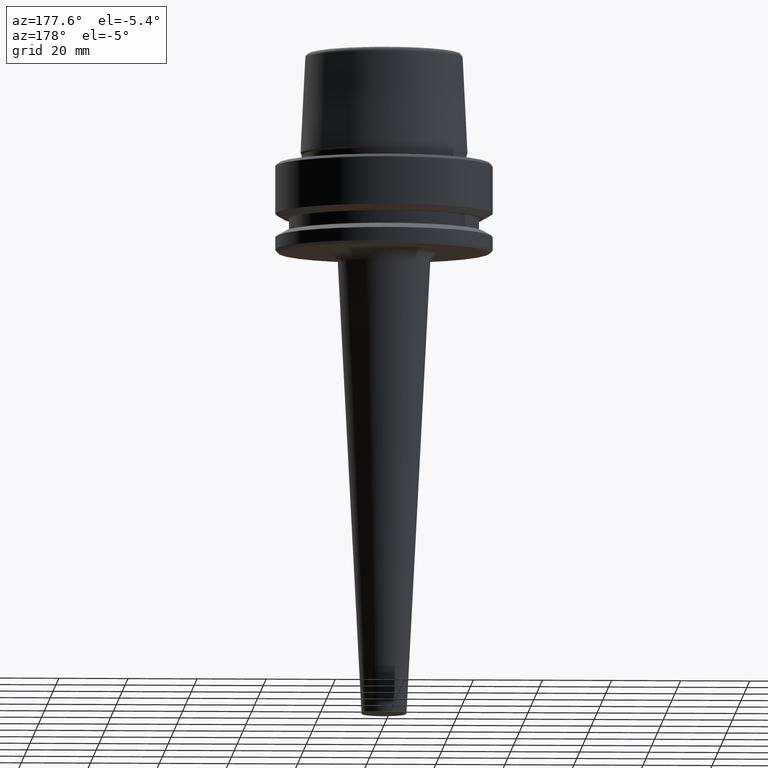
[diagram: clean part render]
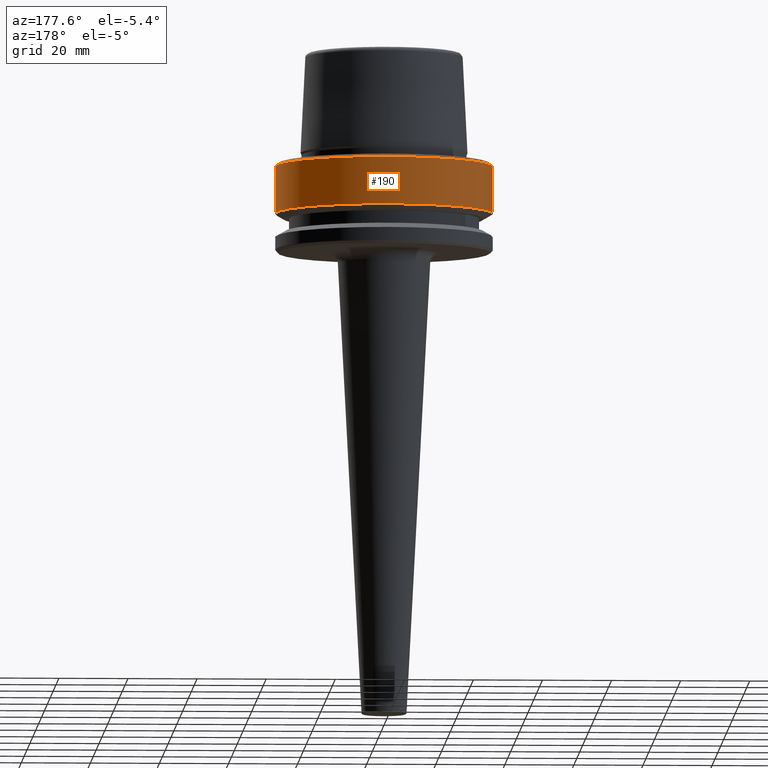
[diagram: same view with one face highlighted and labeled with its STEP entity id]
A machine part, auxiliary view. The second image highlights one B-rep face of the part: STEP entity #190.
In plain terms, the highlighted cylindrical surface (partial cylindrical patch) has radius 31.5 mm, axis along (-0, -0, 1).
Its self-contained STEP definition (entity closure, byte-faithful):
#7 = DIRECTION ( 'NONE',  ( -0.0000000000000000000, -0.0000000000000000000, 1.000000000000000000 ) ) ;
#36 = DIRECTION ( 'NONE',  ( 1.000000000000000000, 0.0000000000000000000, 0.0000000000000000000 ) ) ;
#72 = VECTOR ( 'NONE', #449, 1000.000000000000000 ) ;
#77 = DIRECTION ( 'NONE',  ( -0.0000000000000000000, -0.0000000000000000000, 1.000000000000000000 ) ) ;
#153 = CARTESIAN_POINT ( 'NONE',  ( 0.0000000000000000000, 0.0000000000000000000, 78.96908074195309300 ) ) ;
#164 = DIRECTION ( 'NONE',  ( 1.000000000000000000, 0.0000000000000000000, 0.0000000000000000000 ) ) ;
#171 = CIRCLE ( 'NONE', #596, 31.50000000000000000 ) ;
#190 = ADVANCED_FACE ( 'NONE', ( #1190 ), #977, .T. ) ;
#224 = DIRECTION ( 'NONE',  ( -0.0000000000000000000, -0.0000000000000000000, 1.000000000000000000 ) ) ;
#362 = ORIENTED_EDGE ( 'NONE', *, *, #729, .T. ) ;
#390 = VERTEX_POINT ( 'NONE', #409 ) ;
#409 = CARTESIAN_POINT ( 'NONE',  ( -31.50000000000000000, 3.857637417314162700E-015, -14.62250092524070100 ) ) ;
#415 = DIRECTION ( 'NONE',  ( 1.000000000000000000, 0.0000000000000000000, 0.0000000000000000000 ) ) ;
#449 = DIRECTION ( 'NONE',  ( -0.0000000000000000000, -0.0000000000000000000, 1.000000000000000000 ) ) ;
#463 = VERTEX_POINT ( 'NONE', #892 ) ;
#466 = LINE ( 'NONE', #807, #72 ) ;
#470 = CARTESIAN_POINT ( 'NONE',  ( 31.50000000000000000, 0.0000000000000000000, -14.62250092524070100 ) ) ;
#474 = EDGE_LOOP ( 'NONE', ( #362, #666, #834, #745 ) ) ;
#502 = VERTEX_POINT ( 'NONE', #574 ) ;
#512 = VERTEX_POINT ( 'NONE', #470 ) ;
#526 = DIRECTION ( 'NONE',  ( -0.0000000000000000000, -0.0000000000000000000, 1.000000000000000000 ) ) ;
#574 = CARTESIAN_POINT ( 'NONE',  ( -31.50000000000000700, 3.857637417314163500E-015, -0.9656854249492363700 ) ) ;
#593 = CARTESIAN_POINT ( 'NONE',  ( -31.50000000000000000, 3.857637417314162700E-015, 78.96908074195309300 ) ) ;
#596 = AXIS2_PLACEMENT_3D ( 'NONE', #759, #77, #164 ) ;
#632 = EDGE_CURVE ( 'NONE', #512, #463, #466, .T. ) ;
#666 = ORIENTED_EDGE ( 'NONE', *, *, #681, .T. ) ;
#681 = EDGE_CURVE ( 'NONE', #390, #502, #1163, .T. ) ;
#728 = CARTESIAN_POINT ( 'NONE',  ( 0.0000000000000000000, 0.0000000000000000000, -0.9656854249492363700 ) ) ;
#729 = EDGE_CURVE ( 'NONE', #512, #390, #171, .T. ) ;
#736 = CIRCLE ( 'NONE', #785, 31.50000000000000700 ) ;
#745 = ORIENTED_EDGE ( 'NONE', *, *, #632, .F. ) ;
#759 = CARTESIAN_POINT ( 'NONE',  ( 0.0000000000000000000, 0.0000000000000000000, -14.62250092524070100 ) ) ;
#785 = AXIS2_PLACEMENT_3D ( 'NONE', #728, #7, #36 ) ;
#807 = CARTESIAN_POINT ( 'NONE',  ( 31.50000000000000000, 0.0000000000000000000, 78.96908074195309300 ) ) ;
#834 = ORIENTED_EDGE ( 'NONE', *, *, #1192, .F. ) ;
#892 = CARTESIAN_POINT ( 'NONE',  ( 31.50000000000000700, 0.0000000000000000000, -0.9656854249492363700 ) ) ;
#977 = CYLINDRICAL_SURFACE ( 'NONE', #1010, 31.50000000000000000 ) ;
#1010 = AXIS2_PLACEMENT_3D ( 'NONE', #153, #224, #415 ) ;
#1163 = LINE ( 'NONE', #593, #1249 ) ;
#1190 = FACE_OUTER_BOUND ( 'NONE', #474, .T. ) ;
#1192 = EDGE_CURVE ( 'NONE', #463, #502, #736, .T. ) ;
#1249 = VECTOR ( 'NONE', #526, 1000.000000000000000 ) ;